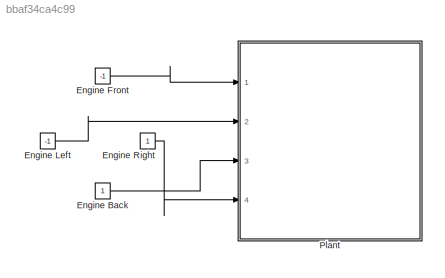
MODEL slx_bbaf34ca4c99
KIND model
BLOCK [Constant] Engine Back
BLOCK [Constant] Engine Front
  Value = -1
BLOCK [Constant] Engine Left
  Value = -1
BLOCK [Constant] Engine Right
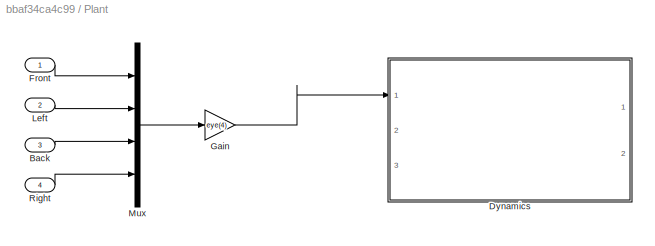
BLOCK [SubSystem] Plant
  Ports = [4]
  RequestExecContextInheritance = off
BLOCK [Inport] Plant/Back
  IconDisplay = Port number
  Port = 3
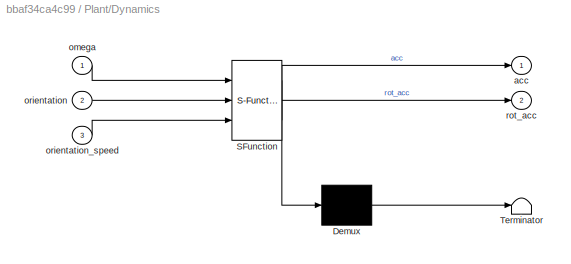
BLOCK [SubSystem] Plant/Dynamics
  ErrorFcn = Stateflow.Translate.translate
  PermitHierarchicalResolution = ExplicitOnly
  Ports = [3, 2]
  RequestExecContextInheritance = off
  SFBlockType = MATLAB Function
  TreatAsAtomicUnit = on
BLOCK [Demux] Plant/Dynamics/ Demux 
  Outputs = 1
  Ports = [1, 1]
BLOCK [S-Function] Plant/Dynamics/ SFunction 
  EnableBusSupport = on
  FunctionName = sf_sfun
  PortCounts = [3 3]
  Ports = [3, 3]
  Tag = Stateflow S-Function yam 2
BLOCK [Terminator] Plant/Dynamics/ Terminator 
BLOCK [Outport] Plant/Dynamics/acc
  IconDisplay = Port number
BLOCK [Inport] Plant/Dynamics/omega
  IconDisplay = Port number
BLOCK [Inport] Plant/Dynamics/orientation
  IconDisplay = Port number
  Port = 2
BLOCK [Inport] Plant/Dynamics/orientation_speed
  IconDisplay = Port number
  Port = 3
BLOCK [Outport] Plant/Dynamics/rot_acc
  IconDisplay = Port number
  Port = 2
BLOCK [Inport] Plant/Front
  IconDisplay = Port number
BLOCK [Gain] Plant/Gain
  Gain = eye(4)
  Multiplication = Matrix(K*u)
  OutDataTypeStr = Inherit: Inherit via internal rule
  ParamDataTypeStr = Inherit: Inherit via internal rule
  SaturateOnIntegerOverflow = off
BLOCK [Inport] Plant/Left
  IconDisplay = Port number
  Port = 2
BLOCK [Mux] Plant/Mux
  DisplayOption = bar
  Ports = [4, 1]
BLOCK [Inport] Plant/Right
  IconDisplay = Port number
  Port = 4
LINE Engine Back:1 -> Plant:3
LINE Engine Front:1 -> Plant:1
LINE Engine Left:1 -> Plant:2
LINE Engine Right:1 -> Plant:4
LINE Plant/Back:1 -> Plant/Mux:3
LINE Plant/Front:1 -> Plant/Mux:1
LINE Plant/Gain:1 -> Plant/Dynamics:1
LINE Plant/Left:1 -> Plant/Mux:2
LINE Plant/Mux:1 -> Plant/Gain:1
LINE Plant/Right:1 -> Plant/Mux:4
CHART Plant/Dynamics states=1 transitions=1
  STATE_LABEL 'eML_blk_kernel()'
  STATE_LABEL "SCRIPT:\nfunction [acc, rot_acc] = fcn(omega, orientation, orientation_speed)\n\nmass = 0.027;\ngravity = [0 0 -9.81]';\nIxx = 1;\nIyy = 1;\nIzz = 1;\n\nIm = diag([Ixx, Iyy, Izz]);\n\n\n%voltagte to thrust\nomega = omega .* 1;\n\n%voltage to torque\nvtt = 1;\n\nF = [0 0 sum(omega)]';\nR = Quaternion(orientation(1), orientation(2), orientation(3)).getRotationMatrix();\nacc = gravity + R * F / mass;\n\n\n\n\nrot_acc = \n\n\n\n\n...<+5ch>"
